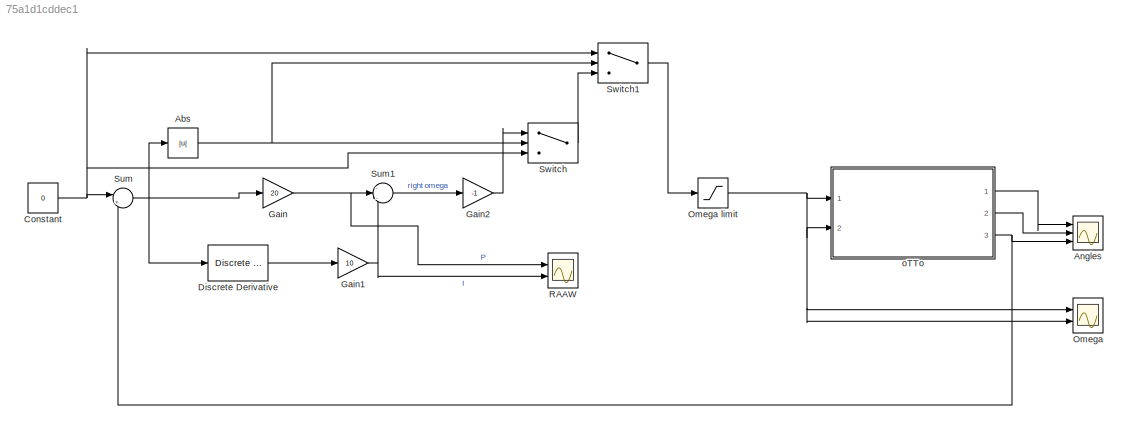
MODEL slx_75a1d1cddec1
KIND model
CONFIG AbsTol = auto
CONFIG EnableMultiTasking = off
CONFIG FixedStep = auto
CONFIG MaxStep = auto
CONFIG MinStep = auto
CONFIG RelTol = 1e-3
CONFIG SampleTimeConstraint = Unconstrained
CONFIG SolverName = VariableStepAuto
CONFIG StartTime = 0.0
CONFIG StopTime = inf
BLOCK [Abs] Abs
  SaturateOnIntegerOverflow = off
BLOCK [Scope] Angles
  Floating = off
  NumInputPorts = 3
  Ports = [3]
  ScopeSpecificationString = Simulink.scopes.TimeScopeBlockCfg('CurrentConfiguration', extmgr.ConfigurationSet(extmgr.Configuration('Core','General UI',true),extmgr.Configuration('Core','Source UI',true),extmgr.Configuration('Sources','WiredSimulink',true),extmgr.Configuration('Visuals','Time Domain',true,'SerializedDisplays',{struct('MinYLimReal','-240.06667','MaxYLimReal','239.93333','YLabelReal','','MinYLimMag',' 0.00000',...<+1500ch>
BLOCK [Constant] Constant
  Value = 0
BLOCK [Reference] Discrete Derivative  REF=simulink/Discrete/Discrete Derivative
  Ports = [1, 1]
  SourceBlock = simulink/Discrete/Discrete Derivative
  SourceProductBaseCode = SL
  SourceType = Discrete Derivative
BLOCK [Gain] Gain
  Gain = 20
BLOCK [Gain] Gain1
  Gain = 10
BLOCK [Gain] Gain2
  Gain = -1
BLOCK [Scope] Omega
  Floating = off
  NumInputPorts = 2
  Ports = [2]
  ScopeSpecificationString = Simulink.scopes.TimeScopeBlockCfg('CurrentConfiguration', extmgr.ConfigurationSet(extmgr.Configuration('Core','General UI',true),extmgr.Configuration('Core','Source UI',true),extmgr.Configuration('Sources','WiredSimulink',true,'DataLoggingVariableName','ScopeData1'),extmgr.Configuration('Visuals','Time Domain',true,'SerializedDisplays',{struct('MinYLimReal','-360','MaxYLimReal','360','YLabelReal',...<+1537ch>
BLOCK [Saturate] Omega limit
  LowerLimit = -720
  UpperLimit = 720
BLOCK [Scope] RAAW
  Floating = off
  NumInputPorts = 2
  Ports = [2]
  ScopeSpecificationString = Simulink.scopes.TimeScopeBlockCfg('CurrentConfiguration', extmgr.ConfigurationSet(extmgr.Configuration('Core','General UI',true),extmgr.Configuration('Core','Source UI',true),extmgr.Configuration('Sources','WiredSimulink',true,'DataLoggingVariableName','ScopeData1'),extmgr.Configuration('Visuals','Time Domain',true,'SerializedDisplays',{struct('MinYLimReal','-360','MaxYLimReal','360','YLabelReal',...<+1492ch>
BLOCK [Sum] Sum
  Inputs = |+-
  Ports = [2, 1]
BLOCK [Sum] Sum1
  Inputs = -|--
  Ports = [3, 1]
BLOCK [Switch] Switch
  Criteria = u2 > Threshold
  InputSameDT = off
  Threshold = 0.5
BLOCK [Switch] Switch1
  Criteria = u2 > Threshold
  InputSameDT = off
  Threshold = 20
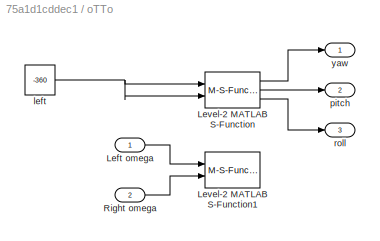
BLOCK [SubSystem] oTTo
  Ports = [2, 3]
  RequestExecContextInheritance = off
BLOCK [Inport] oTTo/Left omega
BLOCK [M-S-Function] oTTo/Level-2 MATLAB S-Function
  FunctionName = oTTo_recv
  Parameters = "COM4", 115200,uart
  Ports = [2, 3]
BLOCK [M-S-Function] oTTo/Level-2 MATLAB S-Function1
  FunctionName = oTTo_send
  Parameters = "COM4", 115200,uart
  Ports = [2]
BLOCK [Inport] oTTo/Right omega
  Port = 2
BLOCK [Constant] oTTo/left
  Value = -360
BLOCK [Outport] oTTo/pitch
  Port = 2
BLOCK [Outport] oTTo/roll
  Port = 3
BLOCK [Outport] oTTo/yaw
NET Abs:1 -> Switch1:2, Switch:2
NET Constant:1 -> Sum:1, Switch1:1, Switch:3
LINE Discrete Derivative:1 -> Gain1:1
NET Gain1:1 -> RAAW:2, Sum1:3
LINE Gain2:1 -> Switch:1
NET Gain:1 -> RAAW:1, Sum1:2
NET Omega limit:1 -> Omega:1, Omega:2, oTTo:1, oTTo:2
LINE Sum1:1 -> Gain2:1
NET Sum:1 -> Abs:1, Discrete Derivative:1, Gain:1
LINE Switch1:1 -> Omega limit:1
LINE Switch:1 -> Switch1:3
LINE oTTo/Left omega:1 -> oTTo/Level-2 MATLAB S-Function1:1
LINE oTTo/Level-2 MATLAB S-Function:1 -> oTTo/yaw:1
LINE oTTo/Level-2 MATLAB S-Function:2 -> oTTo/pitch:1
LINE oTTo/Level-2 MATLAB S-Function:3 -> oTTo/roll:1
LINE oTTo/Right omega:1 -> oTTo/Level-2 MATLAB S-Function1:2
NET oTTo/left:1 -> oTTo/Level-2 MATLAB S-Function:1, oTTo/Level-2 MATLAB S-Function:2
LINE oTTo:1 -> Angles:1
LINE oTTo:2 -> Angles:2
NET oTTo:3 -> Angles:3, Sum:2
note: NET lines group one-source signal fan-out (src -> all destinations, sorted); 1:1 wires keep LINE
